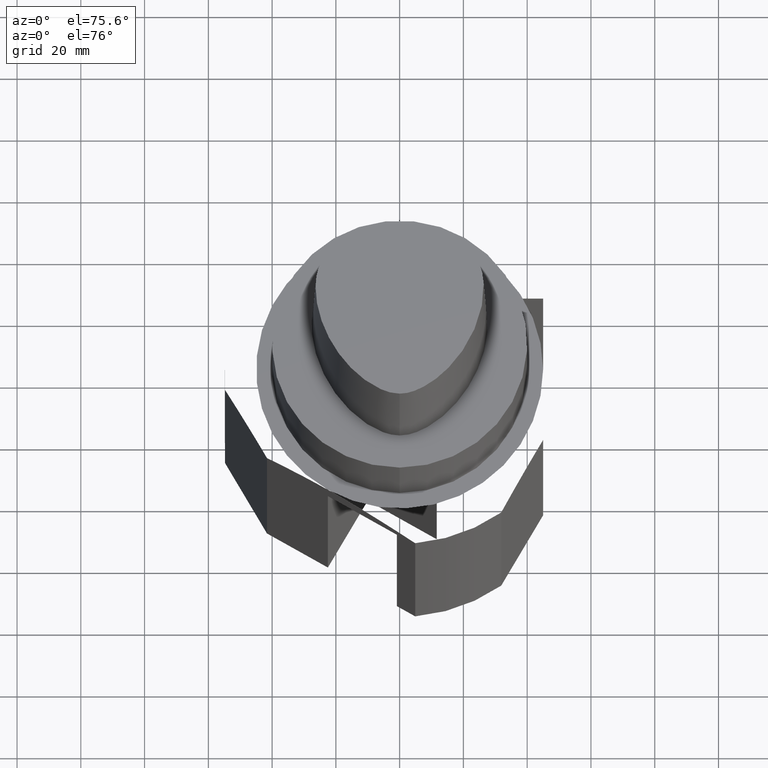
[diagram: clean part render]
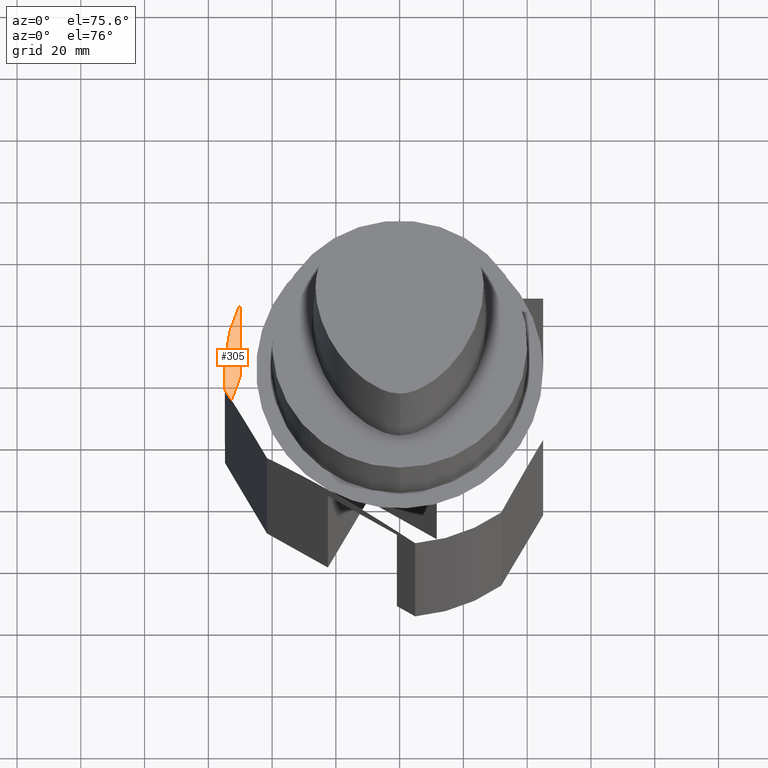
[diagram: same view with one face highlighted and labeled with its STEP entity id]
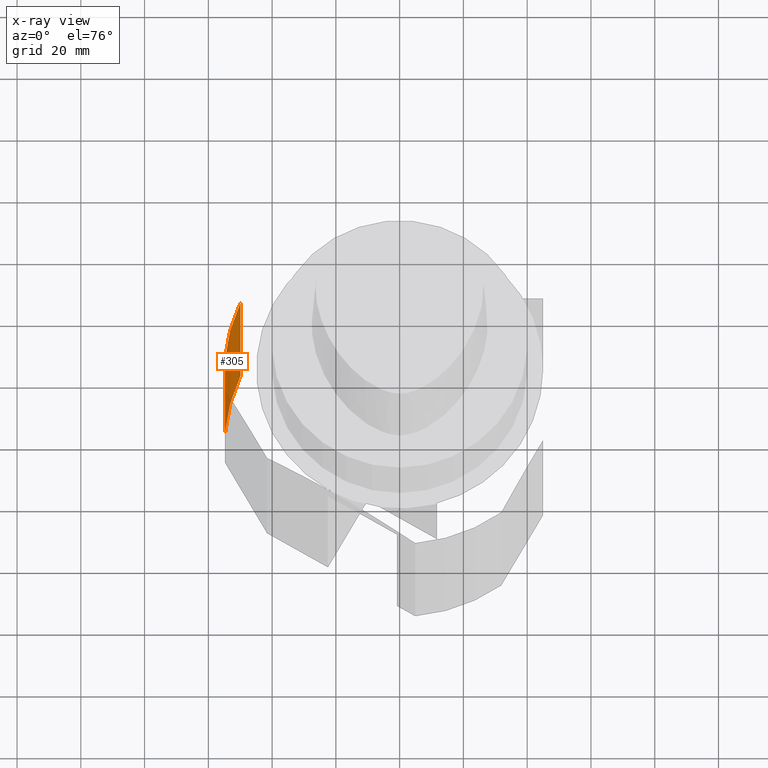
[diagram: x-ray of the same camera — body ghosted, the highlighted face saturated]
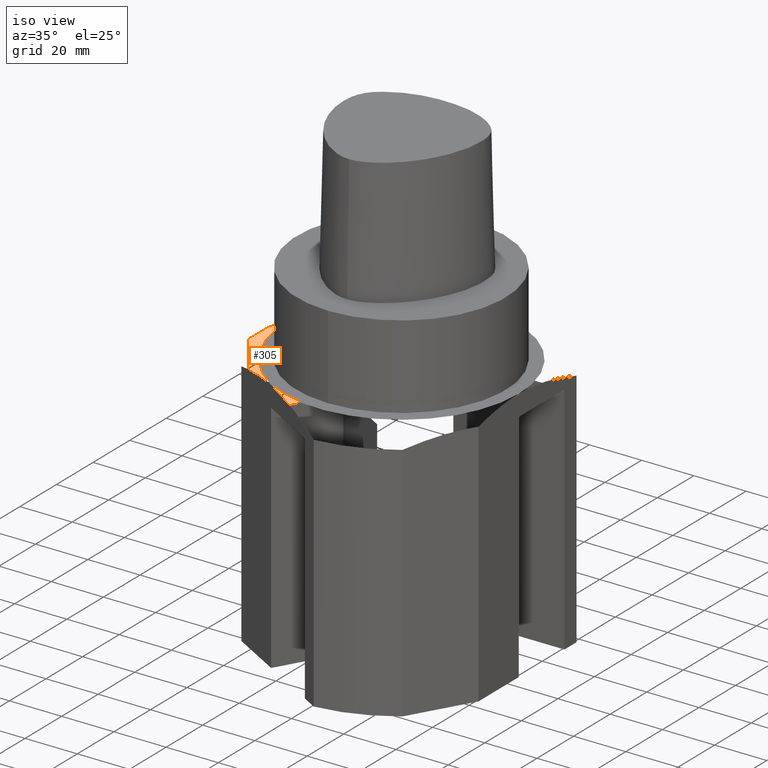
[diagram: same view with one face highlighted and labeled with its STEP entity id]
A machine part, auxiliary view. The second image highlights one B-rep face of the part: STEP entity #305.
The next image is the same camera in x-ray: the body ghosted, the highlighted face saturated — about 12% of this face is hidden behind the body in this view.
A second angle (iso view) of the same face is appended — the face is thin or edge-on in the first view.
In plain terms, the highlighted cylindrical surface (partial cylindrical patch) has radius 55 mm, axis along (0, 0, 1).
Its self-contained STEP definition (entity closure, byte-faithful):
#140=EDGE_CURVE('240[2]',#402,#403,#404,.T.);
#146=EDGE_CURVE('240[2]',#413,#414,#415,.T.);
#305=ADVANCED_FACE('240[2]',(#631),#632,.T.);
#309=EDGE_CURVE('240[2]',#402,#413,#636,.F.);
#357=EDGE_CURVE('240[2]',#403,#414,#690,.T.);
#402=VERTEX_POINT('',#1135);
#403=VERTEX_POINT('',#1136);
#404=LINE('',#1137,#1138);
#413=VERTEX_POINT('',#1152);
#414=VERTEX_POINT('',#1153);
#415=LINE('',#1154,#1155);
#631=FACE_OUTER_BOUND('',#1583,.T.);
#632=CYLINDRICAL_SURFACE('',#1584,55.0);
#636=CIRCLE('',#1591,55.0);
#690=CIRCLE('',#2286,55.0);
#1135=CARTESIAN_POINT('',(-54.7577092094039,-5.15686747341632,-130.0));
#1136=CARTESIAN_POINT('',(-54.7577092094039,-5.15686747341673,-37.7735059470319));
#1137=CARTESIAN_POINT('',(-54.7577092094039,-5.15686747341638,-310.0));
#1138=VECTOR('',#2305,1.0);
#1152=CARTESIAN_POINT('',(-49.8861277533006,23.1597551321543,-130.0));
#1153=CARTESIAN_POINT('',(-49.8861277533006,23.1597551321543,-37.7735059470319));
#1154=CARTESIAN_POINT('',(-49.8861277533006,23.1597551321543,-310.0));
#1155=VECTOR('',#2308,1.0);
#1583=EDGE_LOOP('',(#2547,#2548,#2549,#2550));
#1584=AXIS2_PLACEMENT_3D('',#2551,#2552,#2553);
#1591=AXIS2_PLACEMENT_3D('',#2555,#2556,#2557);
#2286=AXIS2_PLACEMENT_3D('',#2629,#2630,#2631);
#2305=DIRECTION('',(0.0,0.0,1.0));
#2308=DIRECTION('',(0.0,0.0,1.0));
#2547=ORIENTED_EDGE('',*,*,#140,.T.);
#2548=ORIENTED_EDGE('',*,*,#357,.T.);
#2549=ORIENTED_EDGE('',*,*,#146,.F.);
#2550=ORIENTED_EDGE('',*,*,#309,.F.);
#2551=CARTESIAN_POINT('',(-9.4704812334832E-014,-7.95807864051312E-013,-310.0));
#2552=DIRECTION('',(0.0,0.0,1.0));
#2553=DIRECTION('',(-1.0,0.0,0.0));
#2555=CARTESIAN_POINT('',(-9.4704812334832E-014,-7.95807864051312E-013,-130.0));
#2556=DIRECTION('',(0.0,0.0,1.0));
#2557=DIRECTION('',(-1.0,0.0,0.0));
#2629=CARTESIAN_POINT('',(-1.11373877564086E-013,-7.67386154620908E-013,-37.7735059470319));
#2630=DIRECTION('',(0.0,0.0,-1.0));
#2631=DIRECTION('',(-1.0,0.0,0.0));